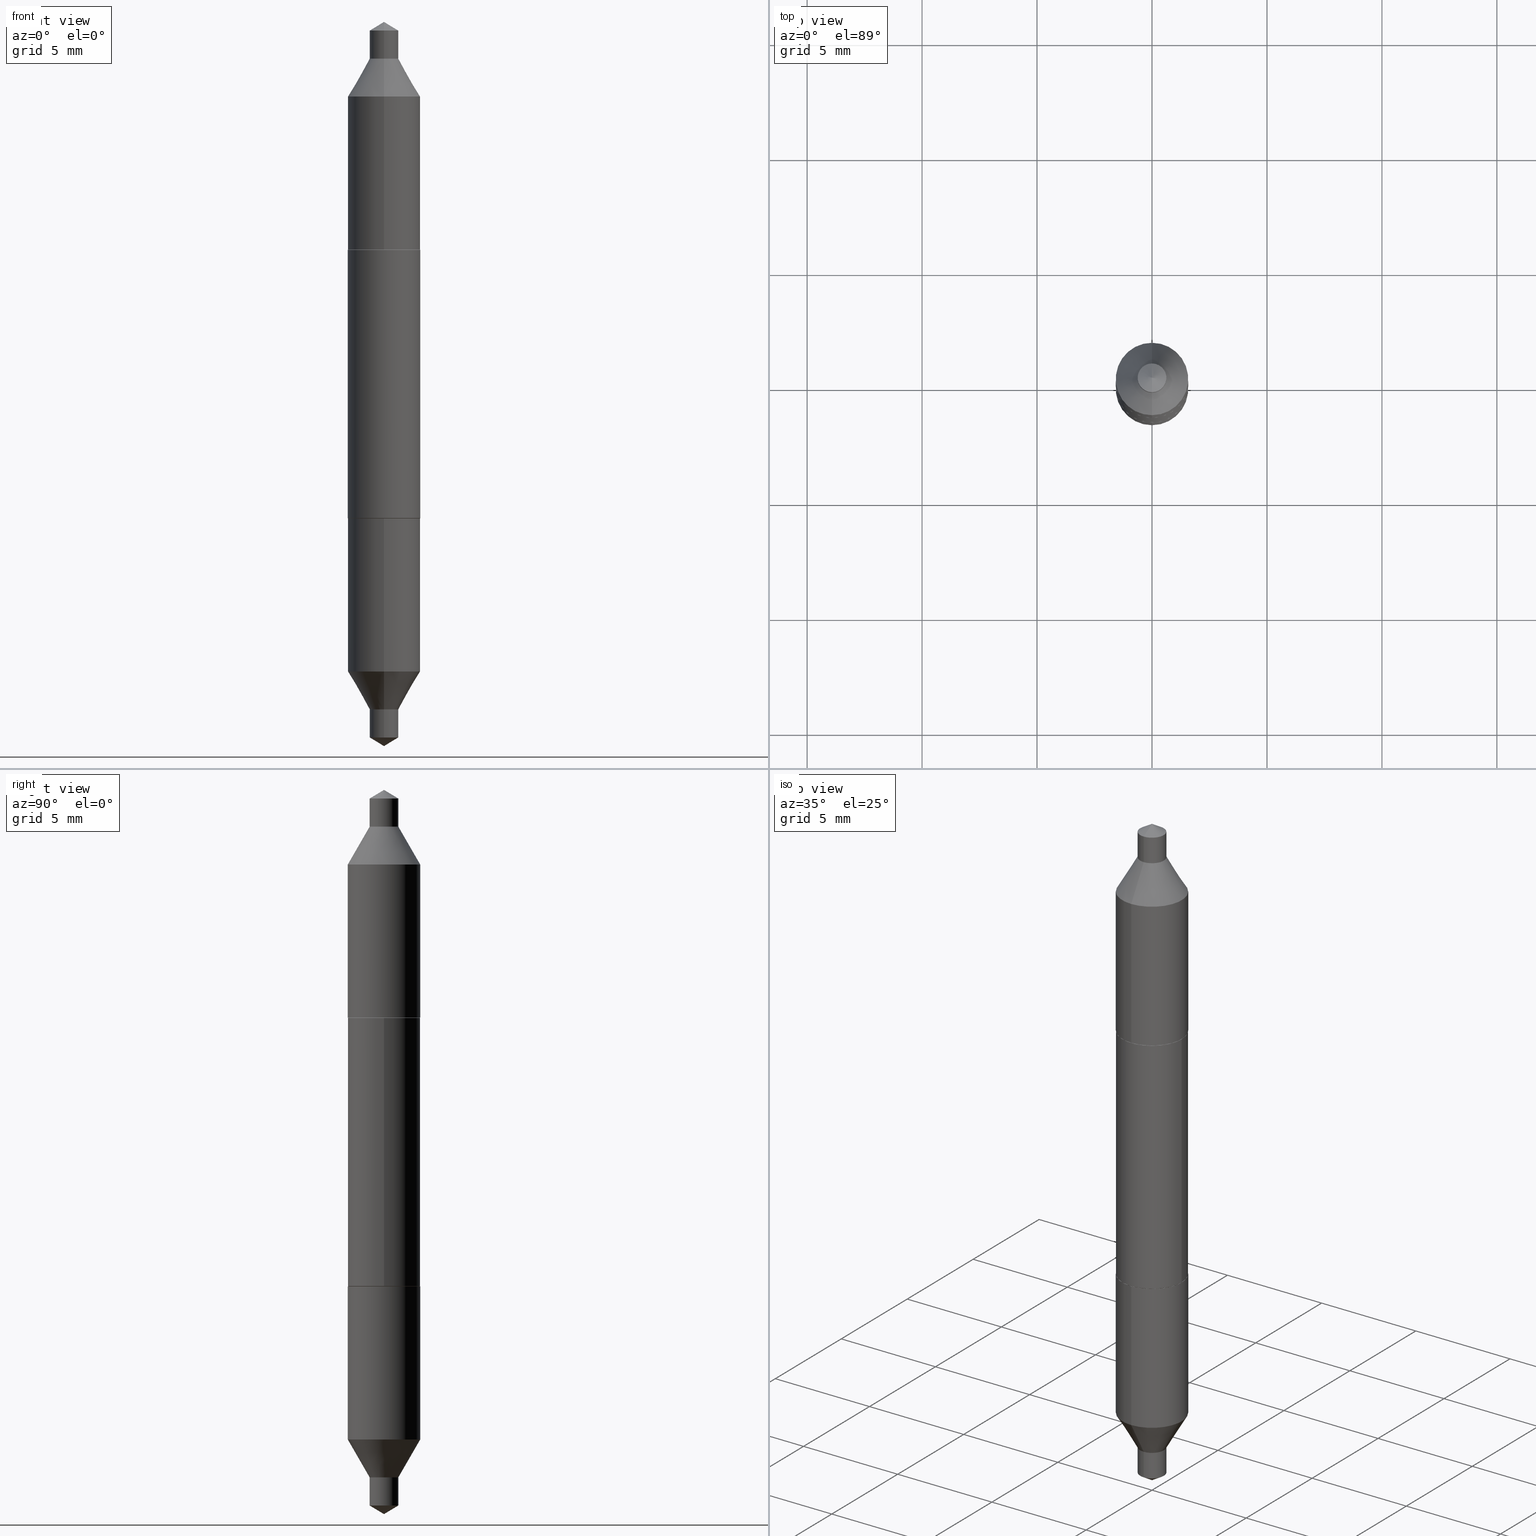
[diagram: canonical four-view strip — front | top / right | iso, engineering-drawing reading convention]
A machine part, canonical four-view strip (front | top / right | iso — engineering-drawing reading convention). The complete STEP part file that produces these views, byte-faithful:
ISO-10303-21;
HEADER;
FILE_DESCRIPTION (( 'STEP AP203' ),
    '1' );
FILE_NAME ('67011.STEP',
    '2024-04-19T15:17:44',
    ( '' ),
    ( '' ),
    'SwSTEP 2.0',
    'SolidWorks 2023',
    '' );
FILE_SCHEMA (( 'CONFIG_CONTROL_DESIGN' ));
ENDSEC;

DATA;
#1 = ORIENTED_EDGE ( 'NONE', *, *, #287, .F. ) ;
#2 = DIRECTION ( 'NONE',  ( -2.416963263212490311E-29, 3.532302898814723965E-15, 1.000000000000000000 ) ) ;
#3 = FACE_OUTER_BOUND ( 'NONE', #121, .T. ) ;
#4 = DIRECTION ( 'NONE',  ( 1.000000000000000000, -6.982962677686267499E-15, 0.000000000000000000 ) ) ;
#5 = VERTEX_POINT ( 'NONE', #279 ) ;
#6 = DIRECTION ( 'NONE',  ( -6.982962677686265922E-15, -1.000000000000000000, 2.776268286244171659E-15 ) ) ;
#7 = APPROVAL ( #420, 'UNSPECIFIED' ) ;
#8 = ORIENTED_EDGE ( 'NONE', *, *, #648, .F. ) ;
#9 = ORIENTED_EDGE ( 'NONE', *, *, #538, .T. ) ;
#10 = DIRECTION ( 'NONE',  ( -6.982962677686265922E-15, -1.000000000000000000, 2.776268286244172054E-15 ) ) ;
#11 = ORIENTED_EDGE ( 'NONE', *, *, #567, .F. ) ;
#12 = DIRECTION ( 'NONE',  ( -2.416963263212490311E-29, 3.532302898814723965E-15, 1.000000000000000000 ) ) ;
#13 = ORIENTED_EDGE ( 'NONE', *, *, #58, .F. ) ;
#14 = AXIS2_PLACEMENT_3D ( 'NONE', #180, #254, #198 ) ;
#15 = CC_DESIGN_APPROVAL ( #7, ( #53 ) ) ;
#16 = ORIENTED_EDGE ( 'NONE', *, *, #296, .T. ) ;
#17 = DIRECTION ( 'NONE',  ( 2.416963263212490591E-29, -3.532302898814723965E-15, -1.000000000000000000 ) ) ;
#18 = FACE_OUTER_BOUND ( 'NONE', #509, .T. ) ;
#19 = CARTESIAN_POINT ( 'NONE',  ( -0.06150000000000001993, -3.660569254414615388E-16, -0.2299999999999999267 ) ) ;
#20 = ADVANCED_FACE ( 'NONE', ( #3 ), #460, .T. ) ;
#21 = FACE_OUTER_BOUND ( 'NONE', #614, .T. ) ;
#22 = LINE ( 'NONE', #564, #218 ) ;
#23 = DIRECTION ( 'NONE',  ( -6.982962677686265922E-15, -1.000000000000000000, 2.776268286244172054E-15 ) ) ;
#24 = AXIS2_PLACEMENT_3D ( 'NONE', #237, #663, #6 ) ;
#25 = CIRCLE ( 'NONE', #423, 0.06200000000000000649 ) ;
#26 = APPLICATION_PROTOCOL_DEFINITION ( 'international standard', 'config_control_design', 1994, #280 ) ;
#27 = CARTESIAN_POINT ( 'NONE',  ( -9.587325710587766122E-28, 1.337039491779741545E-13, 38.75007874015748399 ) ) ;
#28 = DIRECTION ( 'NONE',  ( -6.982962677686265922E-15, -1.000000000000000000, 2.776268286244171659E-15 ) ) ;
#29 = DIRECTION ( 'NONE',  ( -6.982962677686266711E-15, -1.000000000000000000, 3.468864327941562660E-15 ) ) ;
#30 = CC_DESIGN_PERSON_AND_ORGANIZATION_ASSIGNMENT ( #537, #687, ( #53 ) ) ;
#31 = CARTESIAN_POINT ( 'NONE',  ( -5.624578254225812687E-30, 8.030407079339232947E-16, 0.2299999999999999267 ) ) ;
#32 = DIRECTION ( 'NONE',  ( -2.473974349157782882E-29, 3.450659778871567200E-15, 1.000000000000000000 ) ) ;
#33 = CC_DESIGN_APPROVAL ( #464, ( #334 ) ) ;
#34 = DIRECTION ( 'NONE',  ( 1.000000000000000000, 0.000000000000000000, 0.000000000000000000 ) ) ;
#35 = VECTOR ( 'NONE', #264, 39.37007874015748143 ) ;
#36 = LOCAL_TIME ( 11, 17, 44.00000000000000000, #38 ) ;
#37 = CARTESIAN_POINT ( 'NONE',  ( -0.06200000000000002037, -3.607584710932394325E-16, -0.2294999999999999263 ) ) ;
#38 = COORDINATED_UNIVERSAL_TIME_OFFSET ( 5, 0, .BEHIND. ) ;
#39 = DIRECTION ( 'NONE',  ( -2.473974349157782882E-29, 3.450659778871567200E-15, 1.000000000000000000 ) ) ;
#40 = MANIFOLD_SOLID_BREP ( 'Body-Move/Copy2[2]', #189 ) ;
#41 = FACE_OUTER_BOUND ( 'NONE', #440, .T. ) ;
#42 = AXIS2_PLACEMENT_3D ( 'NONE', #342, #12, #188 ) ;
#43 = CONICAL_SURFACE ( 'NONE', #117, 0.06150000000000001993, 0.7853981633974482790 ) ;
#44 = LINE ( 'NONE', #542, #413 ) ;
#45 = CIRCLE ( 'NONE', #104, 0.06200000000000000649 ) ;
#46 = EDGE_LOOP ( 'NONE', ( #453, #638, #493, #269 ) ) ;
#47 = ADVANCED_FACE ( 'NONE', ( #18 ), #503, .T. ) ;
#48 = DIRECTION ( 'NONE',  ( 0.7071067811865474617, -7.406550393246804314E-15, -0.7071067811865474617 ) ) ;
#49 = ORIENTED_EDGE ( 'NONE', *, *, #113, .F. ) ;
#50 = DIRECTION ( 'NONE',  ( 1.000000000000000000, -6.982962677686265133E-15, 0.000000000000000000 ) ) ;
#51 = ORIENTED_EDGE ( 'NONE', *, *, #326, .F. ) ;
#52 = APPROVAL_ROLE ( '' ) ;
#53 = SECURITY_CLASSIFICATION ( '', '', #482 ) ;
#54 = CARTESIAN_POINT ( 'NONE',  ( 5.624578254225812687E-30, -8.030407079339232947E-16, -0.2299999999999999267 ) ) ;
#55 = VECTOR ( 'NONE', #282, 39.37007874015748854 ) ;
#56 = VERTEX_POINT ( 'NONE', #285 ) ;
#57 = CIRCLE ( 'NONE', #524, 0.02459999999999998646 ) ;
#58 = EDGE_CURVE ( 'NONE', #654, #437, #356, .T. ) ;
#59 = DIRECTION ( 'NONE',  ( 2.416963263212490591E-29, -3.532302898814723965E-15, -1.000000000000000000 ) ) ;
#60 = ORIENTED_EDGE ( 'NONE', *, *, #492, .T. ) ;
#61 = ORIENTED_EDGE ( 'NONE', *, *, #355, .T. ) ;
#62 = DIRECTION ( 'NONE',  ( -2.473974349157782882E-29, 3.450659778871567200E-15, 1.000000000000000000 ) ) ;
#63 = DIRECTION ( 'NONE',  ( -6.982962677686265133E-15, -1.000000000000000000, 3.535573257325053711E-15 ) ) ;
#64 = ORIENTED_EDGE ( 'NONE', *, *, #498, .T. ) ;
#65 = EDGE_LOOP ( 'NONE', ( #223, #335, #129 ) ) ;
#66 = FACE_OUTER_BOUND ( 'NONE', #111, .T. ) ;
#67 = ORIENTED_EDGE ( 'NONE', *, *, #627, .T. ) ;
#68 = DIRECTION ( 'NONE',  ( -2.473974349157782882E-29, 3.450659778871567200E-15, 1.000000000000000000 ) ) ;
#69 = VERTEX_POINT ( 'NONE', #138 ) ;
#70 = ORIENTED_EDGE ( 'NONE', *, *, #620, .T. ) ;
#71 = VECTOR ( 'NONE', #323, 39.37007874015748854 ) ;
#72 = VECTOR ( 'NONE', #17, 39.37007874015748143 ) ;
#73 = ADVANCED_FACE ( 'NONE', ( #353 ), #219, .T. ) ;
#74 = DIRECTION ( 'NONE',  ( -2.445468806185136597E-29, 3.491481338843145583E-15, 1.000000000000000000 ) ) ;
#75 = FACE_OUTER_BOUND ( 'NONE', #123, .T. ) ;
#76 = VERTEX_POINT ( 'NONE', #456 ) ;
#77 = CARTESIAN_POINT ( 'NONE',  ( -5.612350910194886774E-30, 8.012949672645016925E-16, 0.2294999999999999263 ) ) ;
#78 = CARTESIAN_POINT ( 'NONE',  ( 5.624578254225812687E-30, -8.030407079339232947E-16, -0.2299999999999999267 ) ) ;
#79 = EDGE_CURVE ( 'NONE', #429, #437, #183, .T. ) ;
#80 = CYLINDRICAL_SURFACE ( 'NONE', #246, 0.02459999999999998299 ) ;
#81 = CARTESIAN_POINT ( 'NONE',  ( -1.717808818710683337E-16, -0.02460000000000191547, -0.5569999999999999396 ) ) ;
#82 = ADVANCED_FACE ( 'NONE', ( #407 ), #462, .T. ) ;
#83 = AXIS2_PLACEMENT_3D ( 'NONE', #239, #193, #613 ) ;
#84 = AXIS2_PLACEMENT_3D ( 'NONE', #234, #350, #447 ) ;
#85 =( NAMED_UNIT ( * ) SI_UNIT ( $, .STERADIAN. ) SOLID_ANGLE_UNIT ( ) );
#86 = EDGE_CURVE ( 'NONE', #230, #340, #103, .T. ) ;
#87 = CARTESIAN_POINT ( 'NONE',  ( -4.329436860165427951E-16, -0.06200000000000079753, -0.2299999999999997324 ) ) ;
#88 =( LENGTH_UNIT ( ) NAMED_UNIT ( * ) SI_UNIT ( $, .METRE. ) );
#89 = FACE_OUTER_BOUND ( 'NONE', #345, .T. ) ;
#90 = DIRECTION ( 'NONE',  ( -6.982962677686265133E-15, -1.000000000000000000, 3.535573257325053711E-15 ) ) ;
#91 = DIRECTION ( 'NONE',  ( -2.416963263212490031E-29, 3.532302898814723965E-15, 1.000000000000000000 ) ) ;
#92 = APPROVAL_PERSON_ORGANIZATION ( #578, #518, #527 ) ;
#93 = DIRECTION ( 'NONE',  ( -6.982962677686265922E-15, -1.000000000000000000, 3.304654831045479808E-15 ) ) ;
#94 = AXIS2_PLACEMENT_3D ( 'NONE', #27, #39, #29 ) ;
#95 = VECTOR ( 'NONE', #341, 39.37007874015748143 ) ;
#96 = CARTESIAN_POINT ( 'NONE',  ( -4.329436860165540857E-16, -0.06199999999999919464, 0.2300000000000001488 ) ) ;
#97 = COORDINATED_UNIVERSAL_TIME_OFFSET ( 5, 0, .BEHIND. ) ;
#98 = CARTESIAN_POINT ( 'NONE',  ( -1.352804812493065762E-29, 1.958103755846338219E-15, 0.5569999999999999396 ) ) ;
#99 = DATE_AND_TIME ( #571, #404 ) ;
#100 = CARTESIAN_POINT ( 'NONE',  ( 0.06200000000000002037, -1.234238653281050355E-15, -0.2294999999999999263 ) ) ;
#101 = EDGE_LOOP ( 'NONE', ( #225, #135, #171, #665 ) ) ;
#102 = DATE_TIME_ROLE ( 'classification_date' ) ;
#103 = CIRCLE ( 'NONE', #42, 0.06199999999999999956 ) ;
#104 = AXIS2_PLACEMENT_3D ( 'NONE', #371, #2, #272 ) ;
#105 = DIRECTION ( 'NONE',  ( -6.982962677686266711E-15, -1.000000000000000000, 3.468864327941562660E-15 ) ) ;
#106 = AXIS2_PLACEMENT_3D ( 'NONE', #227, #511, #442 ) ;
#107 = VERTEX_POINT ( 'NONE', #175 ) ;
#108 = DIRECTION ( 'NONE',  ( 2.416963263212490311E-29, -3.532302898814723965E-15, -1.000000000000000000 ) ) ;
#109 = ORIENTED_EDGE ( 'NONE', *, *, #438, .T. ) ;
#110 = CARTESIAN_POINT ( 'NONE',  ( 1.533979078061162710E-29, -2.139409062900371719E-15, -0.6199999999999999956 ) ) ;
#111 = EDGE_LOOP ( 'NONE', ( #165, #213, #217, #181 ) ) ;
#112 = EDGE_LOOP ( 'NONE', ( #570, #387, #159, #691 ) ) ;
#113 = EDGE_CURVE ( 'NONE', #331, #76, #452, .T. ) ;
#114 = CARTESIAN_POINT ( 'NONE',  ( -4.329436860165604459E-16, -0.06199999999999827177, 0.4922212997969231396 ) ) ;
#115 = AXIS2_PLACEMENT_3D ( 'NONE', #508, #569, #63 ) ;
#116 = ORIENTED_EDGE ( 'NONE', *, *, #137, .T. ) ;
#117 = AXIS2_PLACEMENT_3D ( 'NONE', #259, #474, #308 ) ;
#118 = ORIENTED_EDGE ( 'NONE', *, *, #229, .T. ) ;
#119 = DIRECTION ( 'NONE',  ( 1.000000000000000000, -6.982962677686267499E-15, 0.000000000000000000 ) ) ;
#120 = DIRECTION ( 'NONE',  ( -2.473974349157782882E-29, 3.450659778871567200E-15, 1.000000000000000000 ) ) ;
#121 = EDGE_LOOP ( 'NONE', ( #232, #186, #13, #532 ) ) ;
#122 = CARTESIAN_POINT ( 'NONE',  ( -4.329436860165363856E-16, -0.06200000000000171346, -0.4922212997969227510 ) ) ;
#123 = EDGE_LOOP ( 'NONE', ( #338, #478 ) ) ;
#124 = DIRECTION ( 'NONE',  ( -5.985567269335933391E-15, -0.8571673007021161084, -0.5150380749100477162 ) ) ;
#125 = ORIENTED_EDGE ( 'NONE', *, *, #541, .F. ) ;
#126 = DIRECTION ( 'NONE',  ( 1.000000000000000000, -6.982962677686265922E-15, 0.000000000000000000 ) ) ;
#127 = VECTOR ( 'NONE', #445, 39.37007874015748143 ) ;
#128 = DIRECTION ( 'NONE',  ( -6.982962677686265922E-15, -1.000000000000000000, 3.304654831045479808E-15 ) ) ;
#129 = ORIENTED_EDGE ( 'NONE', *, *, #207, .T. ) ;
#130 = AXIS2_PLACEMENT_3D ( 'NONE', #531, #480, #212 ) ;
#131 = EDGE_CURVE ( 'NONE', #328, #429, #467, .T. ) ;
#132 = LINE ( 'NONE', #662, #72 ) ;
#133 = DIRECTION ( 'NONE',  ( 5.880594550222095446E-15, 0.8571673007021125557, -0.5150380749100536004 ) ) ;
#134 = ORIENTED_EDGE ( 'NONE', *, *, #472, .F. ) ;
#135 = ORIENTED_EDGE ( 'NONE', *, *, #694, .F. ) ;
#136 =( NAMED_UNIT ( * ) PLANE_ANGLE_UNIT ( ) SI_UNIT ( $, .RADIAN. ) );
#137 = EDGE_CURVE ( 'NONE', #331, #382, #347, .T. ) ;
#138 = CARTESIAN_POINT ( 'NONE',  ( 0.06200000000000002037, 3.683512812479530302E-16, 0.2294999999999999263 ) ) ;
#139 = CC_DESIGN_PERSON_AND_ORGANIZATION_ASSIGNMENT ( #427, #275, ( #334 ) ) ;
#140 = PERSON_AND_ORGANIZATION_ROLE ( 'creator' ) ;
#141 = DIRECTION ( 'NONE',  ( 2.438088387897960049E-29, -3.491481338843145188E-15, -1.000000000000000000 ) ) ;
#142 = AXIS2_PLACEMENT_3D ( 'NONE', #155, #108, #589 ) ;
#143 = VECTOR ( 'NONE', #547, 39.37007874015748143 ) ;
#144 = LENGTH_MEASURE_WITH_UNIT ( LENGTH_MEASURE( 0.02539999999999999897 ), #88 );
#145 = DIRECTION ( 'NONE',  ( -1.000000000000000000, 6.982962677686265922E-15, -4.876176775795935793E-29 ) ) ;
#146 = CARTESIAN_POINT ( 'NONE',  ( 1.687682507451648383E-16, 0.02460000000000210976, 0.6052188287719220128 ) ) ;
#147 = ADVANCED_FACE ( 'NONE', ( #21 ), #422, .T. ) ;
#148 = FACE_OUTER_BOUND ( 'NONE', #660, .T. ) ;
#149 = CARTESIAN_POINT ( 'NONE',  ( 5.624578254225812687E-30, -8.030407079339232947E-16, -0.2299999999999999267 ) ) ;
#150 = AXIS2_PLACEMENT_3D ( 'NONE', #238, #658, #126 ) ;
#151 = CONICAL_SURFACE ( 'NONE', #84, 0.06150000000000001993, 0.7853981633974482790 ) ;
#152 = VECTOR ( 'NONE', #185, 39.37007874015748143 ) ;
#153 = CYLINDRICAL_SURFACE ( 'NONE', #610, 0.06199999999999999956 ) ;
#154 = PERSON ( 'UNSPECIFIED', 'UNSPECIFIED', 'UNSPECIFIED', ('UNSPECIFIED'), ('UNSPECIFIED'), ('UNSPECIFIED') ) ;
#155 = CARTESIAN_POINT ( 'NONE',  ( -5.624578254225812687E-30, 8.030407079339232947E-16, 0.2299999999999999267 ) ) ;
#156 = ORIENTED_EDGE ( 'NONE', *, *, #565, .T. ) ;
#157 = CC_DESIGN_PERSON_AND_ORGANIZATION_ASSIGNMENT ( #476, #639, ( #334 ) ) ;
#158 = DIRECTION ( 'NONE',  ( -6.982962677686265922E-15, -1.000000000000000000, 2.776268286244171659E-15 ) ) ;
#159 = ORIENTED_EDGE ( 'NONE', *, *, #567, .T. ) ;
#160 = DATE_AND_TIME ( #684, #526 ) ;
#161 = VECTOR ( 'NONE', #133, 39.37007874015748854 ) ;
#162 = AXIS2_PLACEMENT_3D ( 'NONE', #54, #690, #278 ) ;
#163 = CYLINDRICAL_SURFACE ( 'NONE', #142, 0.02459999999999998299 ) ;
#164 = CIRCLE ( 'NONE', #187, 0.06200000000000002037 ) ;
#165 = ORIENTED_EDGE ( 'NONE', *, *, #585, .T. ) ;
#166 = ADVANCED_FACE ( 'NONE', ( #443 ), #562, .T. ) ;
#167 = DIRECTION ( 'NONE',  ( -2.445468806185136597E-29, 3.491481338843145583E-15, 1.000000000000000000 ) ) ;
#168 = EDGE_LOOP ( 'NONE', ( #661, #70, #647, #487 ) ) ;
#169 = CARTESIAN_POINT ( 'NONE',  ( -1.717808818710670765E-16, -0.02460000000000207507, -0.6052188287719220128 ) ) ;
#170 = ORIENTED_EDGE ( 'NONE', *, *, #79, .F. ) ;
#171 = ORIENTED_EDGE ( 'NONE', *, *, #449, .T. ) ;
#172 = DIRECTION ( 'NONE',  ( -0.7071067811865474617, 7.493145998870352582E-15, 0.7071067811865474617 ) ) ;
#173 = EDGE_CURVE ( 'NONE', #240, #652, #295, .T. ) ;
#174 = AXIS2_PLACEMENT_3D ( 'NONE', #497, #398, #128 ) ;
#175 = CARTESIAN_POINT ( 'NONE',  ( -0.06150000000000001993, 1.225803588961604704E-15, 0.2299999999999999267 ) ) ;
#176 = AXIS2_PLACEMENT_3D ( 'NONE', #483, #646, #539 ) ;
#177 = EDGE_LOOP ( 'NONE', ( #405, #109, #325, #597 ) ) ;
#178 = ADVANCED_FACE ( 'NONE', ( #75 ), #667, .F. ) ;
#179 = DIRECTION ( 'NONE',  ( -2.473974349157782882E-29, 3.450659778871567200E-15, 1.000000000000000000 ) ) ;
#180 = CARTESIAN_POINT ( 'NONE',  ( -1.469347950229935068E-29, 2.128427264494849621E-15, 0.6052188287719221238 ) ) ;
#181 = ORIENTED_EDGE ( 'NONE', *, *, #574, .F. ) ;
#182 = DIRECTION ( 'NONE',  ( 1.000000000000000000, -6.982962677686266711E-15, 4.876176775795935232E-29 ) ) ;
#183 = LINE ( 'NONE', #608, #55 ) ;
#184 = ORIENTED_EDGE ( 'NONE', *, *, #326, .T. ) ;
#185 = DIRECTION ( 'NONE',  ( -3.491481338843073402E-15, -0.4999999999999974465, -0.8660254037844400399 ) ) ;
#186 = ORIENTED_EDGE ( 'NONE', *, *, #79, .T. ) ;
#187 = AXIS2_PLACEMENT_3D ( 'NONE', #602, #554, #119 ) ;
#188 = DIRECTION ( 'NONE',  ( -6.982962677686265922E-15, -1.000000000000000000, 3.304654831045479808E-15 ) ) ;
#189 = CLOSED_SHELL ( 'NONE', ( #701, #446, #47, #682, #82, #216, #675, #686, #147 ) ) ;
#190 = AXIS2_PLACEMENT_3D ( 'NONE', #261, #649, #425 ) ;
#191 = APPROVAL_PERSON_ORGANIZATION ( #329, #464, #52 ) ;
#192 = CARTESIAN_POINT ( 'NONE',  ( 0.000000000000000000, 0.000000000000000000, 0.000000000000000000 ) ) ;
#193 = DIRECTION ( 'NONE',  ( -2.473974349157782882E-29, 3.450659778871567200E-15, 1.000000000000000000 ) ) ;
#194 = ADVANCED_FACE ( 'NONE', ( #242 ), #151, .T. ) ;
#195 = ADVANCED_FACE ( 'NONE', ( #659 ), #566, .T. ) ;
#196 = APPROVAL_DATE_TIME ( #247, #518 ) ;
#197 = CARTESIAN_POINT ( 'NONE',  ( -0.06150000000000001993, 1.224961334796872701E-15, 0.2299999999999999267 ) ) ;
#198 = DIRECTION ( 'NONE',  ( -6.982962677686265922E-15, -1.000000000000000000, 2.776268286244172054E-15 ) ) ;
#199 = CIRCLE ( 'NONE', #591, 0.06199999999999999956 ) ;
#200 = AXIS2_PLACEMENT_3D ( 'NONE', #450, #236, #182 ) ;
#201 = CARTESIAN_POINT ( 'NONE',  ( -5.624578254225812687E-30, 8.030407079339232947E-16, 0.2299999999999999267 ) ) ;
#202 = CARTESIAN_POINT ( 'NONE',  ( -5.624578254225812687E-30, 8.030407079339232947E-16, 0.2299999999999999267 ) ) ;
#203 = PERSON_AND_ORGANIZATION ( #154, #348 ) ;
#204 = CARTESIAN_POINT ( 'NONE',  ( 5.624578254225812687E-30, -8.030407079339232947E-16, -0.2299999999999999267 ) ) ;
#205 = COORDINATED_UNIVERSAL_TIME_OFFSET ( 5, 0, .BEHIND. ) ;
#206 = CARTESIAN_POINT ( 'NONE',  ( -5.624578254225812687E-30, 8.030407079339232947E-16, 0.2299999999999999267 ) ) ;
#207 = EDGE_CURVE ( 'NONE', #76, #382, #321, .T. ) ;
#208 = APPROVAL_STATUS ( 'not_yet_approved' ) ;
#209 = AXIS2_PLACEMENT_3D ( 'NONE', #677, #436, #105 ) ;
#210 = DIRECTION ( 'NONE',  ( -2.473974349157782882E-29, 3.450659778871567200E-15, 1.000000000000000000 ) ) ;
#211 = EDGE_LOOP ( 'NONE', ( #320, #419, #156, #505 ) ) ;
#212 = DIRECTION ( 'NONE',  ( -6.982962677686265922E-15, -1.000000000000000000, 3.304654831045479808E-15 ) ) ;
#213 = ORIENTED_EDGE ( 'NONE', *, *, #173, .T. ) ;
#214 = DATE_AND_TIME ( #267, #534 ) ;
#215 = CARTESIAN_POINT ( 'NONE',  ( 4.405364961712710854E-16, 0.06199999999999830647, -0.4922212997969231396 ) ) ;
#216 = ADVANCED_FACE ( 'NONE', ( #577 ), #572, .F. ) ;
#217 = ORIENTED_EDGE ( 'NONE', *, *, #615, .F. ) ;
#218 = VECTOR ( 'NONE', #59, 39.37007874015748143 ) ;
#219 = CONICAL_SURFACE ( 'NONE', #678, 0.02459999999999998646, 0.5235987755982924874 ) ;
#220 = VECTOR ( 'NONE', #385, 39.37007874015748143 ) ;
#221 = CARTESIAN_POINT ( 'NONE',  ( 0.06150000000000001993, -1.232492912611628851E-15, -0.2299999999999999267 ) ) ;
#222 = CONICAL_SURFACE ( 'NONE', #560, 65.52281426576902845, 1.029744258676658530 ) ;
#223 = ORIENTED_EDGE ( 'NONE', *, *, #137, .F. ) ;
#224 = CYLINDRICAL_SURFACE ( 'NONE', #130, 0.06199999999999999956 ) ;
#225 = ORIENTED_EDGE ( 'NONE', *, *, #271, .F. ) ;
#226 = EDGE_LOOP ( 'NONE', ( #550, #651, #636, #692 ) ) ;
#227 = CARTESIAN_POINT ( 'NONE',  ( 5.612350910194886774E-30, -8.012949672645016925E-16, -0.2294999999999999263 ) ) ;
#228 = CARTESIAN_POINT ( 'NONE',  ( -1.352804812493065762E-29, 1.958103755846338219E-15, 0.5569999999999999396 ) ) ;
#229 = EDGE_CURVE ( 'NONE', #373, #429, #624, .T. ) ;
#230 = VERTEX_POINT ( 'NONE', #410 ) ;
#231 = CARTESIAN_POINT ( 'NONE',  ( 0.06150000000000001993, -1.232492912611628851E-15, -0.2299999999999999267 ) ) ;
#232 = ORIENTED_EDGE ( 'NONE', *, *, #131, .T. ) ;
#233 = AXIS2_PLACEMENT_3D ( 'NONE', #512, #501, #403 ) ;
#234 = CARTESIAN_POINT ( 'NONE',  ( -5.624578254225812687E-30, 8.030407079339232947E-16, 0.2299999999999999267 ) ) ;
#235 = AXIS2_PLACEMENT_3D ( 'NONE', #598, #179, #561 ) ;
#236 = DIRECTION ( 'NONE',  ( -2.445468806185136597E-29, 3.491481338843145583E-15, 1.000000000000000000 ) ) ;
#237 = CARTESIAN_POINT ( 'NONE',  ( 1.371447437597176321E-29, -1.931406455624925954E-15, -0.5569999999999999396 ) ) ;
#238 = CARTESIAN_POINT ( 'NONE',  ( 5.612350910194886774E-30, -8.012949672645016925E-16, -0.2294999999999999263 ) ) ;
#239 = CARTESIAN_POINT ( 'NONE',  ( 1.211186594922981775E-29, -1.707877200306588786E-15, -0.4922212997969229731 ) ) ;
#240 = VERTEX_POINT ( 'NONE', #37 ) ;
#241 = CARTESIAN_POINT ( 'NONE',  ( -1.717808818710763949E-16, -0.02460000000000078443, -0.2299999999999998712 ) ) ;
#242 = FACE_OUTER_BOUND ( 'NONE', #101, .T. ) ;
#243 = EDGE_CURVE ( 'NONE', #669, #324, #582, .T. ) ;
#244 = AXIS2_PLACEMENT_3D ( 'NONE', #494, #68, #672 ) ;
#245 = AXIS2_PLACEMENT_3D ( 'NONE', #202, #680, #415 ) ;
#246 = AXIS2_PLACEMENT_3D ( 'NONE', #575, #352, #258 ) ;
#247 = DATE_AND_TIME ( #473, #36 ) ;
#248 = FACE_OUTER_BOUND ( 'NONE', #587, .T. ) ;
#249 = CARTESIAN_POINT ( 'NONE',  ( -5.624578254225812687E-30, 8.030407079339232947E-16, 0.2299999999999999267 ) ) ;
#250 = DIRECTION ( 'NONE',  ( -2.473974349157782882E-29, 3.450659778871567200E-15, 1.000000000000000000 ) ) ;
#251 = ADVANCED_FACE ( 'NONE', ( #619 ), #299, .T. ) ;
#252 = FACE_OUTER_BOUND ( 'NONE', #226, .T. ) ;
#253 = PRODUCT ( '67011', '67011', '', ( #255 ) ) ;
#254 = DIRECTION ( 'NONE',  ( -2.416963263212490311E-29, 3.532302898814723965E-15, 1.000000000000000000 ) ) ;
#255 = MECHANICAL_CONTEXT ( 'NONE', #280, 'mechanical' ) ;
#256 = LINE ( 'NONE', #576, #533 ) ;
#257 = EDGE_CURVE ( 'NONE', #437, #669, #256, .T. ) ;
#258 = DIRECTION ( 'NONE',  ( -6.982962677686265922E-15, -1.000000000000000000, 4.164402429366257489E-15 ) ) ;
#259 = CARTESIAN_POINT ( 'NONE',  ( 5.624578254225812687E-30, -8.030407079339232947E-16, -0.2299999999999999267 ) ) ;
#260 = APPROVAL_DATE_TIME ( #214, #464 ) ;
#261 = CARTESIAN_POINT ( 'NONE',  ( -5.624578254225812687E-30, 8.030407079339232947E-16, 0.2299999999999999267 ) ) ;
#262 = CC_DESIGN_PERSON_AND_ORGANIZATION_ASSIGNMENT ( #409, #140, ( #634 ) ) ;
#263 = AXIS2_PLACEMENT_3D ( 'NONE', #640, #167, #50 ) ;
#264 = DIRECTION ( 'NONE',  ( 6.090539988449795002E-15, 0.8571673007021161084, 0.5150380749100477162 ) ) ;
#265 = PRODUCT_DEFINITION_SHAPE ( 'NONE', 'NONE',  #634 ) ;
#266 = ORIENTED_EDGE ( 'NONE', *, *, #664, .F. ) ;
#267 = CALENDAR_DATE ( 2024, 19, 4 ) ;
#268 = PLANE ( 'NONE',  #190 ) ;
#269 = ORIENTED_EDGE ( 'NONE', *, *, #644, .F. ) ;
#270 = EDGE_LOOP ( 'NONE', ( #555, #273, #458, #536 ) ) ;
#271 = EDGE_CURVE ( 'NONE', #107, #652, #412, .T. ) ;
#272 = DIRECTION ( 'NONE',  ( -6.982962677686265922E-15, -1.000000000000000000, 3.304654831045479413E-15 ) ) ;
#273 = ORIENTED_EDGE ( 'NONE', *, *, #257, .T. ) ;
#274 = AXIS2_PLACEMENT_3D ( 'NONE', #31, #465, #673 ) ;
#275 = PERSON_AND_ORGANIZATION_ROLE ( 'design_supplier' ) ;
#276 = CLOSED_SHELL ( 'NONE', ( #416, #656, #372, #251, #502, #609, #399, #194 ) ) ;
#277 = CONICAL_SURFACE ( 'NONE', #176, 0.06150000000000001993, 0.7853981633974482790 ) ;
#278 = DIRECTION ( 'NONE',  ( 1.000000000000000000, -6.982962677686265133E-15, 0.000000000000000000 ) ) ;
#279 = CARTESIAN_POINT ( 'NONE',  ( -0.06150000000000001993, -3.634076982673504856E-16, -0.2299999999999999267 ) ) ;
#280 = APPLICATION_CONTEXT ( 'configuration controlled 3d designs of mechanical parts and assemblies' ) ;
#281 = CARTESIAN_POINT ( 'NONE',  ( 1.687682507451739349E-16, 0.02460000000000078443, 0.2299999999999998435 ) ) ;
#282 = DIRECTION ( 'NONE',  ( 3.552713678800440187E-15, 0.4999999999999974465, 0.8660254037844400399 ) ) ;
#283 = CARTESIAN_POINT ( 'NONE',  ( -4.329436860165427951E-16, -0.06200000000000079753, -0.2299999999999997324 ) ) ;
#284 = EDGE_LOOP ( 'NONE', ( #481, #392 ) ) ;
#285 = CARTESIAN_POINT ( 'NONE',  ( 0.06150000000000001993, 3.735885032562177875E-16, 0.2299999999999999267 ) ) ;
#286 = CC_DESIGN_DATE_AND_TIME_ASSIGNMENT ( #99, #529, ( #634 ) ) ;
#287 = EDGE_CURVE ( 'NONE', #540, #5, #358, .T. ) ;
#288 = CYLINDRICAL_SURFACE ( 'NONE', #200, 0.06199999999999999956 ) ;
#289 = MANIFOLD_SOLID_BREP ( 'Body-Move/Copy2[3]', #276 ) ;
#290 = CIRCLE ( 'NONE', #558, 0.06200000000000000649 ) ;
#291 = DIRECTION ( 'NONE',  ( -2.445468806185136877E-29, 3.491481338843145188E-15, 1.000000000000000000 ) ) ;
#292 = AXIS2_PLACEMENT_3D ( 'NONE', #192, #521, #34 ) ;
#293 = ADVANCED_BREP_SHAPE_REPRESENTATION ( '67011', ( #516, #40, #289, #292 ), #490 ) ;
#294 = DIRECTION ( 'NONE',  ( 1.000000000000000000, -6.982962677686266711E-15, 4.876176775795935232E-29 ) ) ;
#295 = LINE ( 'NONE', #553, #630 ) ;
#296 = EDGE_CURVE ( 'NONE', #382, #76, #389, .T. ) ;
#297 = CARTESIAN_POINT ( 'NONE',  ( 0.06199999999999999956, -4.329436860165485144E-16, 3.023229600993479967E-30 ) ) ;
#298 = DIRECTION ( 'NONE',  ( -2.473974349157782882E-29, 3.450659778871567200E-15, 1.000000000000000000 ) ) ;
#299 = PLANE ( 'NONE',  #632 ) ;
#300 = AXIS2_PLACEMENT_3D ( 'NONE', #603, #120, #617 ) ;
#301 = ORIENTED_EDGE ( 'NONE', *, *, #451, .T. ) ;
#302 = VECTOR ( 'NONE', #379, 39.37007874015748143 ) ;
#303 = DIMENSIONAL_EXPONENTS ( 1.000000000000000000, 0.000000000000000000, 0.000000000000000000, 0.000000000000000000, 0.000000000000000000, 0.000000000000000000, 0.000000000000000000 ) ;
#304 = DIRECTION ( 'NONE',  ( -6.982962677686265922E-15, -1.000000000000000000, 3.304654831045479413E-15 ) ) ;
#305 = ORIENTED_EDGE ( 'NONE', *, *, #449, .F. ) ;
#306 = ADVANCED_FACE ( 'NONE', ( #681 ), #153, .T. ) ;
#307 = CARTESIAN_POINT ( 'NONE',  ( 9.365096048666826408E-28, -1.368864044219505421E-13, -38.75007874015748399 ) ) ;
#308 = DIRECTION ( 'NONE',  ( 1.000000000000000000, -6.982962677686265133E-15, 0.000000000000000000 ) ) ;
#309 =( CONVERSION_BASED_UNIT ( 'INCH', #144 ) LENGTH_UNIT ( ) NAMED_UNIT ( #303 ) );
#310 = CARTESIAN_POINT ( 'NONE',  ( -1.469347950229935068E-29, 2.128427264494849621E-15, 0.6052188287719221238 ) ) ;
#311 = CONICAL_SURFACE ( 'NONE', #702, 0.02459999999999998646, 0.5235987755982924874 ) ;
#312 = CONICAL_SURFACE ( 'NONE', #94, 65.52281426576902845, 1.029744258676658530 ) ;
#313 = AXIS2_PLACEMENT_3D ( 'NONE', #249, #625, #93 ) ;
#314 = APPROVAL_STATUS ( 'not_yet_approved' ) ;
#315 = DIRECTION ( 'NONE',  ( 6.982962677686265922E-15, 1.000000000000000000, -3.532302898814723965E-15 ) ) ;
#316 = SHAPE_DEFINITION_REPRESENTATION ( #265, #293 ) ;
#317 = LINE ( 'NONE', #530, #302 ) ;
#318 = COORDINATED_UNIVERSAL_TIME_OFFSET ( 5, 0, .BEHIND. ) ;
#319 = FACE_OUTER_BOUND ( 'NONE', #270, .T. ) ;
#320 = ORIENTED_EDGE ( 'NONE', *, *, #296, .F. ) ;
#321 = CIRCLE ( 'NONE', #14, 0.02459999999999998299 ) ;
#322 = LOCAL_TIME ( 11, 17, 44.00000000000000000, #97 ) ;
#323 = DIRECTION ( 'NONE',  ( 0.7071067811865474617, -2.468850131082256666E-15, 0.7071067811865474617 ) ) ;
#324 = VERTEX_POINT ( 'NONE', #87 ) ;
#325 = ORIENTED_EDGE ( 'NONE', *, *, #411, .T. ) ;
#326 = EDGE_CURVE ( 'NONE', #107, #56, #360, .T. ) ;
#327 = CARTESIAN_POINT ( 'NONE',  ( 4.253508758618293946E-16, 0.06200000000000174122, 0.4922212997969227510 ) ) ;
#328 = VERTEX_POINT ( 'NONE', #366 ) ;
#329 = PERSON_AND_ORGANIZATION ( #154, #348 ) ;
#330 = FACE_OUTER_BOUND ( 'NONE', #177, .T. ) ;
#331 = VERTEX_POINT ( 'NONE', #581 ) ;
#332 = AXIS2_PLACEMENT_3D ( 'NONE', #149, #418, #362 ) ;
#333 = DIRECTION ( 'NONE',  ( -6.982962677686265922E-15, -1.000000000000000000, 2.776268286244171659E-15 ) ) ;
#334 = PRODUCT_DEFINITION_FORMATION_WITH_SPECIFIED_SOURCE ( 'ANY', '', #253, .NOT_KNOWN. ) ;
#335 = ORIENTED_EDGE ( 'NONE', *, *, #113, .T. ) ;
#336 = PRODUCT_RELATED_PRODUCT_CATEGORY ( 'detail', '', ( #253 ) ) ;
#337 = DIRECTION ( 'NONE',  ( -6.982962677686265922E-15, -1.000000000000000000, 2.776268286244171659E-15 ) ) ;
#338 = ORIENTED_EDGE ( 'NONE', *, *, #486, .T. ) ;
#339 = CARTESIAN_POINT ( 'NONE',  ( -1.511629772959161195E-29, 2.171249879678202684E-15, 0.6199999999999999956 ) ) ;
#340 = VERTEX_POINT ( 'NONE', #96 ) ;
#341 = DIRECTION ( 'NONE',  ( 2.416963263212490591E-29, -3.532302898814723965E-15, -1.000000000000000000 ) ) ;
#342 = CARTESIAN_POINT ( 'NONE',  ( -5.624578254225812687E-30, 8.030407079339232947E-16, 0.2299999999999999267 ) ) ;
#343 = EDGE_CURVE ( 'NONE', #437, #654, #25, .T. ) ;
#344 = CYLINDRICAL_SURFACE ( 'NONE', #488, 0.06199999999999999956 ) ;
#345 = EDGE_LOOP ( 'NONE', ( #134, #64, #510 ) ) ;
#346 = VECTOR ( 'NONE', #477, 39.37007874015748854 ) ;
#347 = LINE ( 'NONE', #556, #161 ) ;
#348 = ORGANIZATION ( 'UNSPECIFIED', 'UNSPECIFIED', '' ) ;
#349 = DIRECTION ( 'NONE',  ( -2.473974349157782882E-29, 3.450659778871567200E-15, 1.000000000000000000 ) ) ;
#350 = DIRECTION ( 'NONE',  ( 2.445468806185136597E-29, -3.491481338843145583E-15, -1.000000000000000000 ) ) ;
#351 = ORIENTED_EDGE ( 'NONE', *, *, #664, .T. ) ;
#352 = DIRECTION ( 'NONE',  ( 2.416963263212490311E-29, -3.532302898814723965E-15, -1.000000000000000000 ) ) ;
#353 = FACE_OUTER_BOUND ( 'NONE', #426, .T. ) ;
#354 = COORDINATED_UNIVERSAL_TIME_OFFSET ( 5, 0, .BEHIND. ) ;
#355 = EDGE_CURVE ( 'NONE', #328, #654, #369, .T. ) ;
#356 = CIRCLE ( 'NONE', #83, 0.06200000000000000649 ) ;
#357 = CARTESIAN_POINT ( 'NONE',  ( 5.624578254225812687E-30, -8.030407079339232947E-16, -0.2299999999999999267 ) ) ;
#358 = CIRCLE ( 'NONE', #332, 0.06150000000000001993 ) ;
#359 = ORIENTED_EDGE ( 'NONE', *, *, #520, .T. ) ;
#360 = CIRCLE ( 'NONE', #245, 0.06150000000000001993 ) ;
#361 = FACE_OUTER_BOUND ( 'NONE', #657, .T. ) ;
#362 = DIRECTION ( 'NONE',  ( 1.000000000000000000, -6.982962677686265133E-15, 0.000000000000000000 ) ) ;
#363 = ORIENTED_EDGE ( 'NONE', *, *, #479, .F. ) ;
#364 = CARTESIAN_POINT ( 'NONE',  ( 1.687682507451654546E-16, 0.02460000000000194670, 0.5569999999999999396 ) ) ;
#365 = ADVANCED_FACE ( 'NONE', ( #89 ), #312, .T. ) ;
#366 = CARTESIAN_POINT ( 'NONE',  ( -1.717808818710683337E-16, -0.02460000000000191547, -0.5569999999999999396 ) ) ;
#367 = AXIS2_PLACEMENT_3D ( 'NONE', #525, #685, #471 ) ;
#368 = APPROVAL_ROLE ( '' ) ;
#369 = LINE ( 'NONE', #81, #517 ) ;
#370 = ORIENTED_EDGE ( 'NONE', *, *, #424, .F. ) ;
#371 = CARTESIAN_POINT ( 'NONE',  ( -1.196237073863572951E-29, 1.729285765337559218E-15, 0.4922212997969229731 ) ) ;
#372 = ADVANCED_FACE ( 'NONE', ( #248 ), #43, .T. ) ;
#373 = VERTEX_POINT ( 'NONE', #466 ) ;
#374 = LINE ( 'NONE', #221, #71 ) ;
#375 = EDGE_LOOP ( 'NONE', ( #650, #573, #8 ) ) ;
#376 = VECTOR ( 'NONE', #124, 39.37007874015748143 ) ;
#377 = CIRCLE ( 'NONE', #235, 0.02459999999999998299 ) ;
#378 = DATE_AND_TIME ( #431, #322 ) ;
#379 = DIRECTION ( 'NONE',  ( 2.416963263212490591E-29, -3.532302898814723965E-15, -1.000000000000000000 ) ) ;
#380 = ORIENTED_EDGE ( 'NONE', *, *, #644, .T. ) ;
#381 = DIRECTION ( 'NONE',  ( -5.985567269335957057E-15, -0.8571673007021125557, 0.5150380749100536004 ) ) ;
#382 = VERTEX_POINT ( 'NONE', #146 ) ;
#383 = VERTEX_POINT ( 'NONE', #364 ) ;
#384 = EDGE_LOOP ( 'NONE', ( #543, #484, #359, #699 ) ) ;
#385 = DIRECTION ( 'NONE',  ( -2.473974349157782882E-29, 3.450659778871567200E-15, 1.000000000000000000 ) ) ;
#386 = VERTEX_POINT ( 'NONE', #421 ) ;
#387 = ORIENTED_EDGE ( 'NONE', *, *, #451, .F. ) ;
#388 = CC_DESIGN_PERSON_AND_ORGANIZATION_ASSIGNMENT ( #203, #417, ( #253 ) ) ;
#389 = CIRCLE ( 'NONE', #402, 0.02459999999999998299 ) ;
#390 = ADVANCED_FACE ( 'NONE', ( #631 ), #489, .T. ) ;
#391 = CARTESIAN_POINT ( 'NONE',  ( -1.352804812493065762E-29, 1.958103755846338219E-15, 0.5569999999999999396 ) ) ;
#392 = ORIENTED_EDGE ( 'NONE', *, *, #86, .F. ) ;
#393 = DIRECTION ( 'NONE',  ( -6.982962677686265922E-15, -1.000000000000000000, 2.776268286244171659E-15 ) ) ;
#394 = ORIENTED_EDGE ( 'NONE', *, *, #565, .F. ) ;
#395 = LINE ( 'NONE', #281, #95 ) ;
#396 = CARTESIAN_POINT ( 'NONE',  ( 1.371447437597176321E-29, -1.931406455624925954E-15, -0.5569999999999999396 ) ) ;
#397 = DIRECTION ( 'NONE',  ( -2.416963263212490311E-29, 3.532302898814723965E-15, 1.000000000000000000 ) ) ;
#398 = DIRECTION ( 'NONE',  ( 2.416963263212490311E-29, -3.532302898814723965E-15, -1.000000000000000000 ) ) ;
#399 = ADVANCED_FACE ( 'NONE', ( #41 ), #268, .T. ) ;
#400 = ORIENTED_EDGE ( 'NONE', *, *, #271, .T. ) ;
#401 = CARTESIAN_POINT ( 'NONE',  ( 4.405364961712741915E-16, 0.06199999999999919464, -0.2300000000000001488 ) ) ;
#402 = AXIS2_PLACEMENT_3D ( 'NONE', #310, #468, #463 ) ;
#403 = DIRECTION ( 'NONE',  ( 6.982962677686265922E-15, 1.000000000000000000, -3.450659778871567200E-15 ) ) ;
#404 = LOCAL_TIME ( 11, 17, 44.00000000000000000, #354 ) ;
#405 = ORIENTED_EDGE ( 'NONE', *, *, #627, .F. ) ;
#406 = CYLINDRICAL_SURFACE ( 'NONE', #274, 0.06199999999999999956 ) ;
#407 = FACE_OUTER_BOUND ( 'NONE', #112, .T. ) ;
#408 = EDGE_LOOP ( 'NONE', ( #1, #475 ) ) ;
#409 = PERSON_AND_ORGANIZATION ( #154, #348 ) ;
#410 = CARTESIAN_POINT ( 'NONE',  ( 4.253508758618261406E-16, 0.06200000000000079753, 0.2299999999999997324 ) ) ;
#411 = EDGE_CURVE ( 'NONE', #540, #500, #374, .T. ) ;
#412 = LINE ( 'NONE', #197, #545 ) ;
#413 = VECTOR ( 'NONE', #48, 39.37007874015748854 ) ;
#414 = DESIGN_CONTEXT ( 'detailed design', #495, 'design' ) ;
#415 = DIRECTION ( 'NONE',  ( 1.000000000000000000, -6.982962677686265922E-15, 0.000000000000000000 ) ) ;
#416 = ADVANCED_FACE ( 'NONE', ( #594 ), #277, .T. ) ;
#417 = PERSON_AND_ORGANIZATION_ROLE ( 'design_owner' ) ;
#418 = DIRECTION ( 'NONE',  ( -2.445468806185136597E-29, 3.491481338843145583E-15, 1.000000000000000000 ) ) ;
#419 = ORIENTED_EDGE ( 'NONE', *, *, #593, .T. ) ;
#420 = APPROVAL_STATUS ( 'not_yet_approved' ) ;
#421 = CARTESIAN_POINT ( 'NONE',  ( -1.717808818710955741E-16, -0.02459999999999802969, 0.5570000000000000506 ) ) ;
#422 = CONICAL_SURFACE ( 'NONE', #600, 0.02459999999999998646, 0.5235987755982924874 ) ;
#423 = AXIS2_PLACEMENT_3D ( 'NONE', #528, #626, #304 ) ;
#424 = EDGE_CURVE ( 'NONE', #386, #383, #601, .T. ) ;
#425 = DIRECTION ( 'NONE',  ( -1.000000000000000000, 6.982962677686265922E-15, -4.876176775795935793E-29 ) ) ;
#426 = EDGE_LOOP ( 'NONE', ( #170, #380, #61, #548 ) ) ;
#427 = PERSON_AND_ORGANIZATION ( #154, #348 ) ;
#428 = DIRECTION ( 'NONE',  ( -6.982962677686265922E-15, -1.000000000000000000, 3.304654831045479808E-15 ) ) ;
#429 = VERTEX_POINT ( 'NONE', #695 ) ;
#430 = ORIENTED_EDGE ( 'NONE', *, *, #641, .T. ) ;
#431 = CALENDAR_DATE ( 2024, 19, 4 ) ;
#432 = DIRECTION ( 'NONE',  ( -2.416963263212490311E-29, 3.532302898814723965E-15, 1.000000000000000000 ) ) ;
#433 = ORIENTED_EDGE ( 'NONE', *, *, #579, .T. ) ;
#434 = CIRCLE ( 'NONE', #470, 0.02459999999999998646 ) ;
#435 = CC_DESIGN_SECURITY_CLASSIFICATION ( #53, ( #334 ) ) ;
#436 = DIRECTION ( 'NONE',  ( -2.473974349157782882E-29, 3.450659778871567200E-15, 1.000000000000000000 ) ) ;
#437 = VERTEX_POINT ( 'NONE', #215 ) ;
#438 = EDGE_CURVE ( 'NONE', #5, #540, #461, .T. ) ;
#439 = LINE ( 'NONE', #535, #346 ) ;
#440 = EDGE_LOOP ( 'NONE', ( #559, #184 ) ) ;
#441 = EDGE_CURVE ( 'NONE', #76, #386, #317, .T. ) ;
#442 = DIRECTION ( 'NONE',  ( 1.000000000000000000, -6.982962677686265922E-15, 0.000000000000000000 ) ) ;
#443 = FACE_OUTER_BOUND ( 'NONE', #599, .T. ) ;
#444 = AXIS2_PLACEMENT_3D ( 'NONE', #98, #432, #158 ) ;
#445 = DIRECTION ( 'NONE',  ( -2.473974349157782882E-29, 3.450659778871567200E-15, 1.000000000000000000 ) ) ;
#446 = ADVANCED_FACE ( 'NONE', ( #596 ), #163, .T. ) ;
#447 = DIRECTION ( 'NONE',  ( 1.000000000000000000, -6.982962677686265922E-15, 0.000000000000000000 ) ) ;
#448 = VERTEX_POINT ( 'NONE', #327 ) ;
#449 = EDGE_CURVE ( 'NONE', #56, #69, #44, .T. ) ;
#450 = CARTESIAN_POINT ( 'NONE',  ( 0.000000000000000000, 0.000000000000000000, 0.000000000000000000 ) ) ;
#451 = EDGE_CURVE ( 'NONE', #551, #448, #45, .T. ) ;
#452 = LINE ( 'NONE', #339, #376 ) ;
#453 = ORIENTED_EDGE ( 'NONE', *, *, #229, .F. ) ;
#454 = VERTEX_POINT ( 'NONE', #169 ) ;
#455 = LINE ( 'NONE', #666, #152 ) ;
#456 = CARTESIAN_POINT ( 'NONE',  ( -1.717808818710966834E-16, -0.02459999999999784928, 0.6052188287719222348 ) ) ;
#457 = AXIS2_PLACEMENT_3D ( 'NONE', #77, #496, #4 ) ;
#458 = ORIENTED_EDGE ( 'NONE', *, *, #486, .F. ) ;
#459 = CARTESIAN_POINT ( 'NONE',  ( 1.533864096477825297E-29, -2.139409062900371719E-15, -0.6199999999999999956 ) ) ;
#460 = CONICAL_SURFACE ( 'NONE', #244, 0.02459999999999998646, 0.5235987755982924874 ) ;
#461 = CIRCLE ( 'NONE', #263, 0.06150000000000001993 ) ;
#462 = CYLINDRICAL_SURFACE ( 'NONE', #174, 0.06199999999999999956 ) ;
#463 = DIRECTION ( 'NONE',  ( -6.982962677686265922E-15, -1.000000000000000000, 2.776268286244172054E-15 ) ) ;
#464 = APPROVAL ( #208, 'UNSPECIFIED' ) ;
#465 = DIRECTION ( 'NONE',  ( 2.416963263212490311E-29, -3.532302898814723965E-15, -1.000000000000000000 ) ) ;
#466 = CARTESIAN_POINT ( 'NONE',  ( 1.747935129969993900E-16, 0.02459999999999788398, -0.6052188287719222348 ) ) ;
#467 = CIRCLE ( 'NONE', #24, 0.02459999999999998646 ) ;
#468 = DIRECTION ( 'NONE',  ( -2.416963263212490311E-29, 3.532302898814723965E-15, 1.000000000000000000 ) ) ;
#469 = CONICAL_SURFACE ( 'NONE', #162, 0.06150000000000001993, 0.7853981633974482790 ) ;
#470 = AXIS2_PLACEMENT_3D ( 'NONE', #499, #349, #337 ) ;
#471 = DIRECTION ( 'NONE',  ( -6.982962677686265922E-15, -1.000000000000000000, 3.304654831045479808E-15 ) ) ;
#472 = EDGE_CURVE ( 'NONE', #563, #454, #584, .T. ) ;
#473 = CALENDAR_DATE ( 2024, 19, 4 ) ;
#474 = DIRECTION ( 'NONE',  ( -2.445468806185136597E-29, 3.491481338843145583E-15, 1.000000000000000000 ) ) ;
#475 = ORIENTED_EDGE ( 'NONE', *, *, #438, .F. ) ;
#476 = PERSON_AND_ORGANIZATION ( #154, #348 ) ;
#477 = DIRECTION ( 'NONE',  ( 3.430248998885747243E-15, 0.4999999999999913403, -0.8660254037844434816 ) ) ;
#478 = ORIENTED_EDGE ( 'NONE', *, *, #243, .T. ) ;
#479 = EDGE_CURVE ( 'NONE', #383, #448, #439, .T. ) ;
#480 = DIRECTION ( 'NONE',  ( -2.473974349157782882E-29, 3.450659778871567200E-15, 1.000000000000000000 ) ) ;
#481 = ORIENTED_EDGE ( 'NONE', *, *, #683, .F. ) ;
#482 = SECURITY_CLASSIFICATION_LEVEL ( 'unclassified' ) ;
#483 = CARTESIAN_POINT ( 'NONE',  ( -5.624578254225812687E-30, 8.030407079339232947E-16, 0.2299999999999999267 ) ) ;
#484 = ORIENTED_EDGE ( 'NONE', *, *, #343, .T. ) ;
#485 = DIRECTION ( 'NONE',  ( -2.416963263212490311E-29, 3.532302898814723965E-15, 1.000000000000000000 ) ) ;
#486 = EDGE_CURVE ( 'NONE', #324, #669, #199, .T. ) ;
#487 = ORIENTED_EDGE ( 'NONE', *, *, #641, .F. ) ;
#488 = AXIS2_PLACEMENT_3D ( 'NONE', #671, #74, #294 ) ;
#489 = CONICAL_SURFACE ( 'NONE', #209, 65.52281426576902845, 1.029744258676658530 ) ;
#490 =( GEOMETRIC_REPRESENTATION_CONTEXT ( 3 ) GLOBAL_UNCERTAINTY_ASSIGNED_CONTEXT ( ( #588 ) ) GLOBAL_UNIT_ASSIGNED_CONTEXT ( ( #309, #136, #85 ) ) REPRESENTATION_CONTEXT ( 'NONE', 'WORKASPACE' ) );
#491 = CARTESIAN_POINT ( 'NONE',  ( 1.520751546710408006E-29, -2.158186980487297349E-15, -0.6199999999999999956 ) ) ;
#492 = EDGE_CURVE ( 'NONE', #448, #551, #290, .T. ) ;
#493 = ORIENTED_EDGE ( 'NONE', *, *, #541, .T. ) ;
#494 = CARTESIAN_POINT ( 'NONE',  ( 1.371447437597176321E-29, -1.931406455624925954E-15, -0.5569999999999999396 ) ) ;
#495 = APPLICATION_CONTEXT ( 'configuration controlled 3d designs of mechanical parts and assemblies' ) ;
#496 = DIRECTION ( 'NONE',  ( -2.445468806185136597E-29, 3.491481338843145583E-15, 1.000000000000000000 ) ) ;
#497 = CARTESIAN_POINT ( 'NONE',  ( -5.624578254225812687E-30, 8.030407079339232947E-16, 0.2299999999999999267 ) ) ;
#498 = EDGE_CURVE ( 'NONE', #563, #373, #586, .T. ) ;
#499 = CARTESIAN_POINT ( 'NONE',  ( 1.371447437597176321E-29, -1.931406455624925954E-15, -0.5569999999999999396 ) ) ;
#500 = VERTEX_POINT ( 'NONE', #100 ) ;
#501 = DIRECTION ( 'NONE',  ( 2.473974349157782602E-29, -3.450659778871567200E-15, -1.000000000000000000 ) ) ;
#502 = ADVANCED_FACE ( 'NONE', ( #330 ), #469, .T. ) ;
#503 = CONICAL_SURFACE ( 'NONE', #115, 65.52281426576902845, 1.029744258676658530 ) ;
#504 = VECTOR ( 'NONE', #381, 39.37007874015748854 ) ;
#505 = ORIENTED_EDGE ( 'NONE', *, *, #441, .F. ) ;
#506 = CIRCLE ( 'NONE', #546, 0.02459999999999998299 ) ;
#507 = LINE ( 'NONE', #241, #127 ) ;
#508 = CARTESIAN_POINT ( 'NONE',  ( 9.365096048666826408E-28, -1.368864044219505421E-13, -38.75007874015748399 ) ) ;
#509 = EDGE_LOOP ( 'NONE', ( #49, #116, #16 ) ) ;
#510 = ORIENTED_EDGE ( 'NONE', *, *, #538, .F. ) ;
#511 = DIRECTION ( 'NONE',  ( -2.445468806185136597E-29, 3.491481338843145583E-15, 1.000000000000000000 ) ) ;
#512 = CARTESIAN_POINT ( 'NONE',  ( 5.624578254225812687E-30, -8.030407079339232947E-16, -0.2299999999999999267 ) ) ;
#513 = ADVANCED_FACE ( 'NONE', ( #319 ), #224, .T. ) ;
#514 = LINE ( 'NONE', #297, #143 ) ;
#515 = DIRECTION ( 'NONE',  ( -6.982962677686265922E-15, -1.000000000000000000, 2.776268286244171659E-15 ) ) ;
#516 = MANIFOLD_SOLID_BREP ( 'Body-Move/Copy2[1]', #580 ) ;
#517 = VECTOR ( 'NONE', #522, 39.37007874015748854 ) ;
#518 = APPROVAL ( #314, 'UNSPECIFIED' ) ;
#519 = DIRECTION ( 'NONE',  ( -6.982962677686265922E-15, -1.000000000000000000, 3.304654831045479808E-15 ) ) ;
#520 = EDGE_CURVE ( 'NONE', #654, #324, #637, .T. ) ;
#521 = DIRECTION ( 'NONE',  ( 0.000000000000000000, 0.000000000000000000, 1.000000000000000000 ) ) ;
#522 = DIRECTION ( 'NONE',  ( -3.491481338843115211E-15, -0.4999999999999913403, 0.8660254037844434816 ) ) ;
#523 = DIRECTION ( 'NONE',  ( -0.7071067811865474617, 2.382254525458707609E-15, -0.7071067811865474617 ) ) ;
#524 = AXIS2_PLACEMENT_3D ( 'NONE', #391, #397, #333 ) ;
#525 = CARTESIAN_POINT ( 'NONE',  ( 5.624578254225812687E-30, -8.030407079339232947E-16, -0.2299999999999999267 ) ) ;
#526 = LOCAL_TIME ( 11, 17, 44.00000000000000000, #205 ) ;
#527 = APPROVAL_ROLE ( '' ) ;
#528 = CARTESIAN_POINT ( 'NONE',  ( 1.211186594922981775E-29, -1.707877200306588786E-15, -0.4922212997969229731 ) ) ;
#529 = DATE_TIME_ROLE ( 'creation_date' ) ;
#530 = CARTESIAN_POINT ( 'NONE',  ( -1.717808818710876115E-16, -0.02459999999999918155, 0.2300000000000000377 ) ) ;
#531 = CARTESIAN_POINT ( 'NONE',  ( 5.624578254225812687E-30, -8.030407079339232947E-16, -0.2299999999999999267 ) ) ;
#532 = ORIENTED_EDGE ( 'NONE', *, *, #355, .F. ) ;
#533 = VECTOR ( 'NONE', #250, 39.37007874015748143 ) ;
#534 = LOCAL_TIME ( 11, 17, 44.00000000000000000, #318 ) ;
#535 = CARTESIAN_POINT ( 'NONE',  ( 1.687682507451660463E-16, 0.02460000000000194670, 0.5569999999999999396 ) ) ;
#536 = ORIENTED_EDGE ( 'NONE', *, *, #520, .F. ) ;
#537 = PERSON_AND_ORGANIZATION ( #154, #348 ) ;
#538 = EDGE_CURVE ( 'NONE', #454, #373, #377, .T. ) ;
#539 = DIRECTION ( 'NONE',  ( 1.000000000000000000, -6.982962677686265922E-15, 0.000000000000000000 ) ) ;
#540 = VERTEX_POINT ( 'NONE', #231 ) ;
#541 = EDGE_CURVE ( 'NONE', #454, #328, #507, .T. ) ;
#542 = CARTESIAN_POINT ( 'NONE',  ( 0.06150000000000001993, 3.735885032562177875E-16, 0.2299999999999999267 ) ) ;
#543 = ORIENTED_EDGE ( 'NONE', *, *, #257, .F. ) ;
#544 = ORIENTED_EDGE ( 'NONE', *, *, #86, .T. ) ;
#545 = VECTOR ( 'NONE', #523, 39.37007874015748854 ) ;
#546 = AXIS2_PLACEMENT_3D ( 'NONE', #552, #62, #10 ) ;
#547 = DIRECTION ( 'NONE',  ( -2.445468806185136877E-29, 3.491481338843145188E-15, 1.000000000000000000 ) ) ;
#548 = ORIENTED_EDGE ( 'NONE', *, *, #343, .F. ) ;
#549 = ORIENTED_EDGE ( 'NONE', *, *, #492, .F. ) ;
#550 = ORIENTED_EDGE ( 'NONE', *, *, #593, .F. ) ;
#551 = VERTEX_POINT ( 'NONE', #114 ) ;
#552 = CARTESIAN_POINT ( 'NONE',  ( 1.490739583125343083E-29, -2.097793228652492577E-15, -0.6052188287719221238 ) ) ;
#553 = CARTESIAN_POINT ( 'NONE',  ( -0.06199999999999999956, 4.405364961712621121E-16, -3.049739755958041223E-30 ) ) ;
#554 = DIRECTION ( 'NONE',  ( -2.445468806185136597E-29, 3.491481338843145583E-15, 1.000000000000000000 ) ) ;
#555 = ORIENTED_EDGE ( 'NONE', *, *, #58, .T. ) ;
#556 = CARTESIAN_POINT ( 'NONE',  ( -1.498632204775081316E-29, 2.190027797265128709E-15, 0.6199999999999999956 ) ) ;
#557 = ORIENTED_EDGE ( 'NONE', *, *, #411, .F. ) ;
#558 = AXIS2_PLACEMENT_3D ( 'NONE', #635, #485, #698 ) ;
#559 = ORIENTED_EDGE ( 'NONE', *, *, #694, .T. ) ;
#560 = AXIS2_PLACEMENT_3D ( 'NONE', #307, #621, #90 ) ;
#561 = DIRECTION ( 'NONE',  ( -6.982962677686265922E-15, -1.000000000000000000, 2.776268286244172054E-15 ) ) ;
#562 = CYLINDRICAL_SURFACE ( 'NONE', #300, 0.02459999999999998299 ) ;
#563 = VERTEX_POINT ( 'NONE', #459 ) ;
#564 = CARTESIAN_POINT ( 'NONE',  ( 4.253508758618292960E-16, 0.06200000000000079753, 0.2299999999999997324 ) ) ;
#565 = EDGE_CURVE ( 'NONE', #383, #386, #57, .T. ) ;
#566 = CYLINDRICAL_SURFACE ( 'NONE', #622, 0.02459999999999998299 ) ;
#567 = EDGE_CURVE ( 'NONE', #551, #340, #132, .T. ) ;
#568 = CARTESIAN_POINT ( 'NONE',  ( -1.352804812493065762E-29, 1.958103755846338219E-15, 0.5569999999999999396 ) ) ;
#569 = DIRECTION ( 'NONE',  ( 2.416963263212490311E-29, -3.532302898814723965E-15, -1.000000000000000000 ) ) ;
#570 = ORIENTED_EDGE ( 'NONE', *, *, #579, .F. ) ;
#571 = CALENDAR_DATE ( 2024, 19, 4 ) ;
#572 = PLANE ( 'NONE',  #643 ) ;
#573 = ORIENTED_EDGE ( 'NONE', *, *, #472, .T. ) ;
#574 = EDGE_CURVE ( 'NONE', #500, #69, #514, .T. ) ;
#575 = CARTESIAN_POINT ( 'NONE',  ( -5.624578254225812687E-30, 8.030407079339232947E-16, 0.2299999999999999267 ) ) ;
#576 = CARTESIAN_POINT ( 'NONE',  ( 4.405364961712676834E-16, 0.06199999999999919464, -0.2300000000000001488 ) ) ;
#577 = FACE_OUTER_BOUND ( 'NONE', #284, .T. ) ;
#578 = PERSON_AND_ORGANIZATION ( #154, #348 ) ;
#579 = EDGE_CURVE ( 'NONE', #448, #230, #22, .T. ) ;
#580 = CLOSED_SHELL ( 'NONE', ( #20, #166, #365, #513, #306, #178, #390, #195, #73 ) ) ;
#581 = CARTESIAN_POINT ( 'NONE',  ( -1.498517223191743903E-29, 2.190027797265128709E-15, 0.6199999999999999956 ) ) ;
#582 = CIRCLE ( 'NONE', #367, 0.06199999999999999956 ) ;
#583 = CIRCLE ( 'NONE', #150, 0.06200000000000002037 ) ;
#584 = LINE ( 'NONE', #491, #504 ) ;
#585 = EDGE_CURVE ( 'NONE', #500, #240, #583, .T. ) ;
#586 = LINE ( 'NONE', #110, #35 ) ;
#587 = EDGE_LOOP ( 'NONE', ( #696, #67, #642, #557 ) ) ;
#588 = UNCERTAINTY_MEASURE_WITH_UNIT (LENGTH_MEASURE( 1.000000000000000082E-05 ), #309, 'distance_accuracy_value', 'NONE');
#589 = DIRECTION ( 'NONE',  ( -6.982962677686265922E-15, -1.000000000000000000, 4.164402429366257489E-15 ) ) ;
#590 = ORIENTED_EDGE ( 'NONE', *, *, #479, .T. ) ;
#591 = AXIS2_PLACEMENT_3D ( 'NONE', #688, #210, #428 ) ;
#592 = CIRCLE ( 'NONE', #313, 0.06199999999999999956 ) ;
#593 = EDGE_CURVE ( 'NONE', #382, #383, #395, .T. ) ;
#594 = FACE_OUTER_BOUND ( 'NONE', #595, .T. ) ;
#595 = EDGE_LOOP ( 'NONE', ( #51, #400, #430, #305 ) ) ;
#596 = FACE_OUTER_BOUND ( 'NONE', #211, .T. ) ;
#597 = ORIENTED_EDGE ( 'NONE', *, *, #620, .F. ) ;
#598 = CARTESIAN_POINT ( 'NONE',  ( 1.490739583125343083E-29, -2.097793228652492577E-15, -0.6052188287719221238 ) ) ;
#599 = EDGE_LOOP ( 'NONE', ( #9, #118, #689, #125 ) ) ;
#600 = AXIS2_PLACEMENT_3D ( 'NONE', #228, #655, #393 ) ;
#601 = CIRCLE ( 'NONE', #444, 0.02459999999999998646 ) ;
#602 = CARTESIAN_POINT ( 'NONE',  ( -5.612350910194886774E-30, 8.012949672645016925E-16, 0.2294999999999999263 ) ) ;
#603 = CARTESIAN_POINT ( 'NONE',  ( 5.624578254225812687E-30, -8.030407079339232947E-16, -0.2299999999999999267 ) ) ;
#604 = CC_DESIGN_DATE_AND_TIME_ASSIGNMENT ( #160, #102, ( #53 ) ) ;
#605 = CARTESIAN_POINT ( 'NONE',  ( -0.06200000000000002037, 4.405364961712619149E-16, 0.2294999999999999263 ) ) ;
#606 = DIRECTION ( 'NONE',  ( -2.473974349157782882E-29, 3.450659778871567200E-15, 1.000000000000000000 ) ) ;
#607 = FACE_OUTER_BOUND ( 'NONE', #168, .T. ) ;
#608 = CARTESIAN_POINT ( 'NONE',  ( 1.747935129969982313E-16, 0.02459999999999805745, -0.5570000000000000506 ) ) ;
#609 = ADVANCED_FACE ( 'NONE', ( #607 ), #344, .T. ) ;
#610 = AXIS2_PLACEMENT_3D ( 'NONE', #357, #629, #519 ) ;
#611 = AXIS2_PLACEMENT_3D ( 'NONE', #201, #616, #676 ) ;
#612 = FACE_OUTER_BOUND ( 'NONE', #65, .T. ) ;
#613 = DIRECTION ( 'NONE',  ( -6.982962677686265922E-15, -1.000000000000000000, 3.304654831045479413E-15 ) ) ;
#614 = EDGE_LOOP ( 'NONE', ( #363, #370, #351, #301 ) ) ;
#615 = EDGE_CURVE ( 'NONE', #69, #652, #668, .T. ) ;
#616 = DIRECTION ( 'NONE',  ( -2.445468806185136597E-29, 3.491481338843145583E-15, 1.000000000000000000 ) ) ;
#617 = DIRECTION ( 'NONE',  ( -6.982962677686265922E-15, -1.000000000000000000, 2.776268286244172054E-15 ) ) ;
#618 = DIRECTION ( 'NONE',  ( 2.416963263212490311E-29, -3.532302898814723965E-15, -1.000000000000000000 ) ) ;
#619 = FACE_OUTER_BOUND ( 'NONE', #408, .T. ) ;
#620 = EDGE_CURVE ( 'NONE', #240, #500, #697, .T. ) ;
#621 = DIRECTION ( 'NONE',  ( 2.416963263212490311E-29, -3.532302898814723965E-15, -1.000000000000000000 ) ) ;
#622 = AXIS2_PLACEMENT_3D ( 'NONE', #78, #298, #23 ) ;
#623 = APPROVAL_PERSON_ORGANIZATION ( #693, #7, #368 ) ;
#624 = LINE ( 'NONE', #674, #700 ) ;
#625 = DIRECTION ( 'NONE',  ( -2.416963263212490311E-29, 3.532302898814723965E-15, 1.000000000000000000 ) ) ;
#626 = DIRECTION ( 'NONE',  ( -2.473974349157782882E-29, 3.450659778871567200E-15, 1.000000000000000000 ) ) ;
#627 = EDGE_CURVE ( 'NONE', #5, #240, #653, .T. ) ;
#628 = APPLICATION_PROTOCOL_DEFINITION ( 'international standard', 'config_control_design', 1994, #495 ) ;
#629 = DIRECTION ( 'NONE',  ( -2.473974349157782882E-29, 3.450659778871567200E-15, 1.000000000000000000 ) ) ;
#630 = VECTOR ( 'NONE', #291, 39.37007874015748143 ) ;
#631 = FACE_OUTER_BOUND ( 'NONE', #375, .T. ) ;
#632 = AXIS2_PLACEMENT_3D ( 'NONE', #204, #141, #145 ) ;
#633 = CC_DESIGN_APPROVAL ( #518, ( #634 ) ) ;
#634 = PRODUCT_DEFINITION ( 'UNKNOWN', '', #334, #414 ) ;
#635 = CARTESIAN_POINT ( 'NONE',  ( -1.196237073863572951E-29, 1.729285765337559218E-15, 0.4922212997969229731 ) ) ;
#636 = ORIENTED_EDGE ( 'NONE', *, *, #441, .T. ) ;
#637 = LINE ( 'NONE', #283, #220 ) ;
#638 = ORIENTED_EDGE ( 'NONE', *, *, #648, .T. ) ;
#639 = PERSON_AND_ORGANIZATION_ROLE ( 'creator' ) ;
#640 = CARTESIAN_POINT ( 'NONE',  ( 5.624578254225812687E-30, -8.030407079339232947E-16, -0.2299999999999999267 ) ) ;
#641 = EDGE_CURVE ( 'NONE', #652, #69, #164, .T. ) ;
#642 = ORIENTED_EDGE ( 'NONE', *, *, #585, .F. ) ;
#643 = AXIS2_PLACEMENT_3D ( 'NONE', #206, #91, #315 ) ;
#644 = EDGE_CURVE ( 'NONE', #429, #328, #434, .T. ) ;
#645 = APPROVAL_DATE_TIME ( #378, #7 ) ;
#646 = DIRECTION ( 'NONE',  ( 2.445468806185136597E-29, -3.491481338843145583E-15, -1.000000000000000000 ) ) ;
#647 = ORIENTED_EDGE ( 'NONE', *, *, #574, .T. ) ;
#648 = EDGE_CURVE ( 'NONE', #373, #454, #506, .T. ) ;
#649 = DIRECTION ( 'NONE',  ( -2.438088387897960049E-29, 3.491481338843145188E-15, 1.000000000000000000 ) ) ;
#650 = ORIENTED_EDGE ( 'NONE', *, *, #498, .F. ) ;
#651 = ORIENTED_EDGE ( 'NONE', *, *, #207, .F. ) ;
#652 = VERTEX_POINT ( 'NONE', #605 ) ;
#653 = LINE ( 'NONE', #19, #670 ) ;
#654 = VERTEX_POINT ( 'NONE', #122 ) ;
#655 = DIRECTION ( 'NONE',  ( 2.416963263212490311E-29, -3.532302898814723965E-15, -1.000000000000000000 ) ) ;
#656 = ADVANCED_FACE ( 'NONE', ( #66 ), #288, .T. ) ;
#657 = EDGE_LOOP ( 'NONE', ( #394, #590, #60, #266 ) ) ;
#658 = DIRECTION ( 'NONE',  ( -2.445468806185136597E-29, 3.491481338843145583E-15, 1.000000000000000000 ) ) ;
#659 = FACE_OUTER_BOUND ( 'NONE', #46, .T. ) ;
#660 = EDGE_LOOP ( 'NONE', ( #549, #433, #544, #11 ) ) ;
#661 = ORIENTED_EDGE ( 'NONE', *, *, #173, .F. ) ;
#662 = CARTESIAN_POINT ( 'NONE',  ( -4.329436860165540857E-16, -0.06199999999999919464, 0.2300000000000001488 ) ) ;
#663 = DIRECTION ( 'NONE',  ( -2.473974349157782882E-29, 3.450659778871567200E-15, 1.000000000000000000 ) ) ;
#664 = EDGE_CURVE ( 'NONE', #386, #551, #455, .T. ) ;
#665 = ORIENTED_EDGE ( 'NONE', *, *, #615, .T. ) ;
#666 = CARTESIAN_POINT ( 'NONE',  ( -1.717808818710955741E-16, -0.02459999999999802969, 0.5570000000000000506 ) ) ;
#667 = PLANE ( 'NONE',  #233 ) ;
#668 = CIRCLE ( 'NONE', #457, 0.06200000000000002037 ) ;
#669 = VERTEX_POINT ( 'NONE', #401 ) ;
#670 = VECTOR ( 'NONE', #172, 39.37007874015748854 ) ;
#671 = CARTESIAN_POINT ( 'NONE',  ( 0.000000000000000000, 0.000000000000000000, 0.000000000000000000 ) ) ;
#672 = DIRECTION ( 'NONE',  ( -6.982962677686265922E-15, -1.000000000000000000, 2.776268286244171659E-15 ) ) ;
#673 = DIRECTION ( 'NONE',  ( -6.982962677686265922E-15, -1.000000000000000000, 3.304654831045479808E-15 ) ) ;
#674 = CARTESIAN_POINT ( 'NONE',  ( 1.747935129969900962E-16, 0.02459999999999918155, -0.2300000000000000100 ) ) ;
#675 = ADVANCED_FACE ( 'NONE', ( #612 ), #222, .T. ) ;
#676 = DIRECTION ( 'NONE',  ( 1.000000000000000000, -6.982962677686265922E-15, 0.000000000000000000 ) ) ;
#677 = CARTESIAN_POINT ( 'NONE',  ( -9.587325710587766122E-28, 1.337039491779741545E-13, 38.75007874015748399 ) ) ;
#678 = AXIS2_PLACEMENT_3D ( 'NONE', #396, #606, #515 ) ;
#679 = CIRCLE ( 'NONE', #611, 0.06150000000000001993 ) ;
#680 = DIRECTION ( 'NONE',  ( -2.445468806185136597E-29, 3.491481338843145583E-15, 1.000000000000000000 ) ) ;
#681 = FACE_OUTER_BOUND ( 'NONE', #384, .T. ) ;
#682 = ADVANCED_FACE ( 'NONE', ( #148 ), #406, .T. ) ;
#683 = EDGE_CURVE ( 'NONE', #340, #230, #592, .T. ) ;
#684 = CALENDAR_DATE ( 2024, 19, 4 ) ;
#685 = DIRECTION ( 'NONE',  ( -2.473974349157782882E-29, 3.450659778871567200E-15, 1.000000000000000000 ) ) ;
#686 = ADVANCED_FACE ( 'NONE', ( #252 ), #80, .T. ) ;
#687 = PERSON_AND_ORGANIZATION_ROLE ( 'classification_officer' ) ;
#688 = CARTESIAN_POINT ( 'NONE',  ( 5.624578254225812687E-30, -8.030407079339232947E-16, -0.2299999999999999267 ) ) ;
#689 = ORIENTED_EDGE ( 'NONE', *, *, #131, .F. ) ;
#690 = DIRECTION ( 'NONE',  ( -2.445468806185136597E-29, 3.491481338843145583E-15, 1.000000000000000000 ) ) ;
#691 = ORIENTED_EDGE ( 'NONE', *, *, #683, .T. ) ;
#692 = ORIENTED_EDGE ( 'NONE', *, *, #424, .T. ) ;
#693 = PERSON_AND_ORGANIZATION ( #154, #348 ) ;
#694 = EDGE_CURVE ( 'NONE', #56, #107, #679, .T. ) ;
#695 = CARTESIAN_POINT ( 'NONE',  ( 1.747935129969994146E-16, 0.02459999999999805398, -0.5570000000000000506 ) ) ;
#696 = ORIENTED_EDGE ( 'NONE', *, *, #287, .T. ) ;
#697 = CIRCLE ( 'NONE', #106, 0.06200000000000002037 ) ;
#698 = DIRECTION ( 'NONE',  ( -6.982962677686265922E-15, -1.000000000000000000, 3.304654831045479413E-15 ) ) ;
#699 = ORIENTED_EDGE ( 'NONE', *, *, #243, .F. ) ;
#700 = VECTOR ( 'NONE', #32, 39.37007874015748143 ) ;
#701 = ADVANCED_FACE ( 'NONE', ( #361 ), #311, .T. ) ;
#702 = AXIS2_PLACEMENT_3D ( 'NONE', #568, #618, #28 ) ;
ENDSEC;
END-ISO-10303-21;
